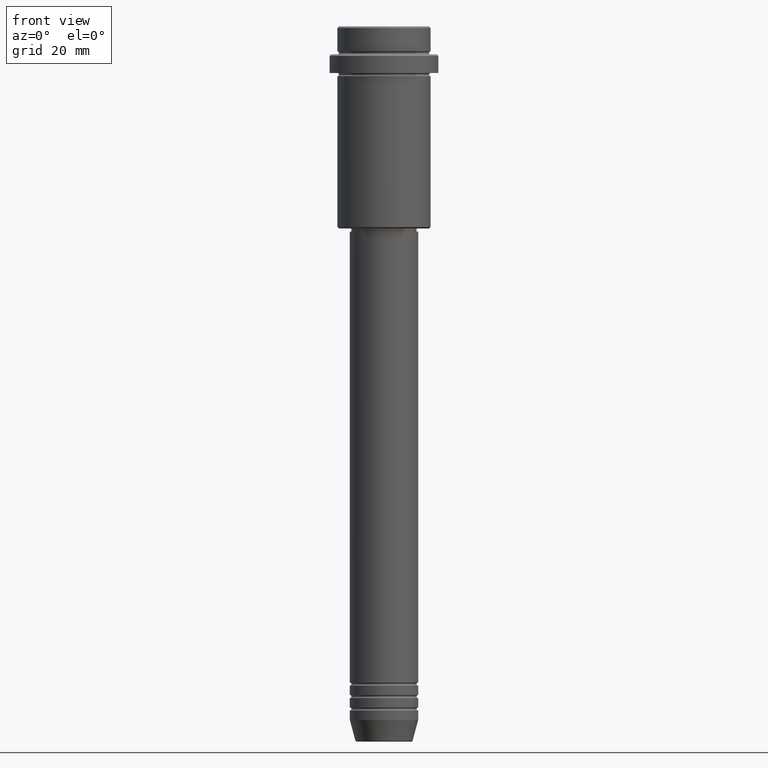
[diagram: clean part render]
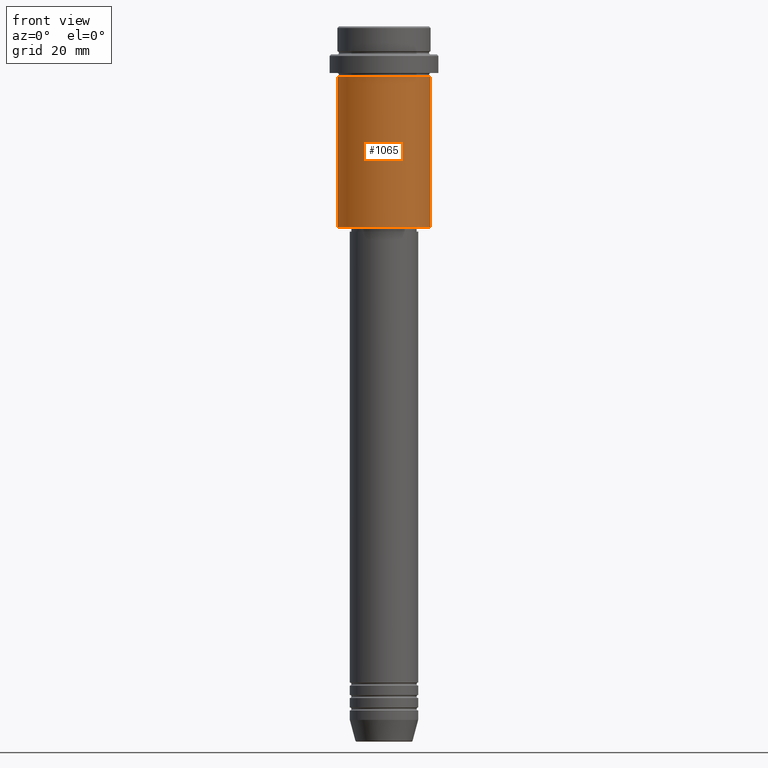
[diagram: same view with one face highlighted and labeled with its STEP entity id]
A machine part, front view. The second image highlights one B-rep face of the part: STEP entity #1065.
In plain terms, the highlighted cylindrical surface (partial cylindrical patch) has radius 15 mm, axis along (-0, -0, 1).
Its self-contained STEP definition (entity closure, byte-faithful):
#78 = CARTESIAN_POINT ( 'NONE',  ( -15.00000000000000000, 1.836970198721029589E-15, -64.50000000000004263 ) ) ;
#113 = DIRECTION ( 'NONE',  ( 1.000000000000000000, 0.000000000000000000, 0.000000000000000000 ) ) ;
#260 = EDGE_CURVE ( 'NONE', #545, #525, #735, .T. ) ;
#290 = ORIENTED_EDGE ( 'NONE', *, *, #1198, .T. ) ;
#330 = CARTESIAN_POINT ( 'NONE',  ( -15.00000000000000000, 1.836970198721029589E-15, 0.000000000000000000 ) ) ;
#335 = CARTESIAN_POINT ( 'NONE',  ( 0.000000000000000000, 0.000000000000000000, -16.00000000000000000 ) ) ;
#394 = CARTESIAN_POINT ( 'NONE',  ( 0.000000000000000000, 0.000000000000000000, 0.000000000000000000 ) ) ;
#429 = CARTESIAN_POINT ( 'NONE',  ( 0.000000000000000000, 0.000000000000000000, -64.50000000000004263 ) ) ;
#445 = LINE ( 'NONE', #882, #646 ) ;
#483 = ORIENTED_EDGE ( 'NONE', *, *, #639, .F. ) ;
#489 = VERTEX_POINT ( 'NONE', #941 ) ;
#525 = VERTEX_POINT ( 'NONE', #649 ) ;
#545 = VERTEX_POINT ( 'NONE', #78 ) ;
#567 = CIRCLE ( 'NONE', #834, 15.00000000000000178 ) ;
#593 = AXIS2_PLACEMENT_3D ( 'NONE', #394, #1102, #113 ) ;
#639 = EDGE_CURVE ( 'NONE', #489, #1149, #567, .T. ) ;
#646 = VECTOR ( 'NONE', #1327, 1000.000000000000000 ) ;
#649 = CARTESIAN_POINT ( 'NONE',  ( 15.00000000000000000, 0.000000000000000000, -64.50000000000004263 ) ) ;
#695 = EDGE_CURVE ( 'NONE', #545, #489, #1318, .T. ) ;
#728 = FACE_OUTER_BOUND ( 'NONE', #751, .T. ) ;
#735 = CIRCLE ( 'NONE', #1133, 15.00000000000000000 ) ;
#751 = EDGE_LOOP ( 'NONE', ( #967, #1127, #290, #483 ) ) ;
#759 = VECTOR ( 'NONE', #1001, 1000.000000000000000 ) ;
#769 = CARTESIAN_POINT ( 'NONE',  ( 15.00000000000000178, 0.000000000000000000, -16.00000000000000000 ) ) ;
#834 = AXIS2_PLACEMENT_3D ( 'NONE', #335, #1217, #974 ) ;
#882 = CARTESIAN_POINT ( 'NONE',  ( 15.00000000000000000, 0.000000000000000000, 0.000000000000000000 ) ) ;
#941 = CARTESIAN_POINT ( 'NONE',  ( -15.00000000000000355, 1.836970198721029983E-15, -16.00000000000000000 ) ) ;
#967 = ORIENTED_EDGE ( 'NONE', *, *, #695, .F. ) ;
#974 = DIRECTION ( 'NONE',  ( 1.000000000000000000, 0.000000000000000000, 0.000000000000000000 ) ) ;
#1001 = DIRECTION ( 'NONE',  ( -0.000000000000000000, -0.000000000000000000, 1.000000000000000000 ) ) ;
#1065 = ADVANCED_FACE ( 'NONE', ( #728 ), #1154, .T. ) ;
#1102 = DIRECTION ( 'NONE',  ( -0.000000000000000000, -0.000000000000000000, 1.000000000000000000 ) ) ;
#1104 = DIRECTION ( 'NONE',  ( -0.000000000000000000, -0.000000000000000000, 1.000000000000000000 ) ) ;
#1108 = DIRECTION ( 'NONE',  ( -1.000000000000000000, 0.000000000000000000, 0.000000000000000000 ) ) ;
#1127 = ORIENTED_EDGE ( 'NONE', *, *, #260, .T. ) ;
#1133 = AXIS2_PLACEMENT_3D ( 'NONE', #429, #1104, #1108 ) ;
#1149 = VERTEX_POINT ( 'NONE', #769 ) ;
#1154 = CYLINDRICAL_SURFACE ( 'NONE', #593, 15.00000000000000000 ) ;
#1198 = EDGE_CURVE ( 'NONE', #525, #1149, #445, .T. ) ;
#1217 = DIRECTION ( 'NONE',  ( -0.000000000000000000, -0.000000000000000000, 1.000000000000000000 ) ) ;
#1318 = LINE ( 'NONE', #330, #759 ) ;
#1327 = DIRECTION ( 'NONE',  ( -0.000000000000000000, -0.000000000000000000, 1.000000000000000000 ) ) ;